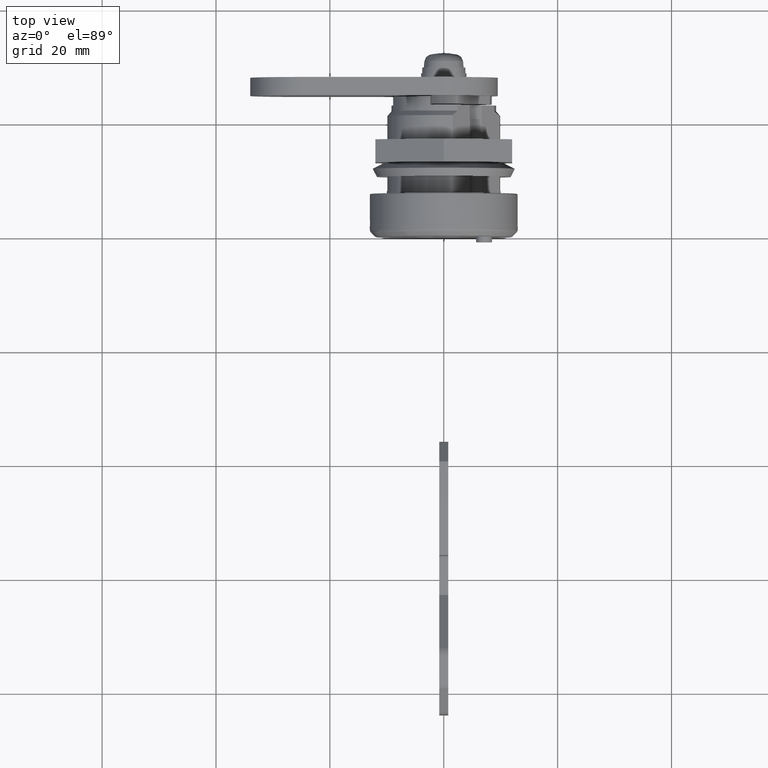
[diagram: clean part render]
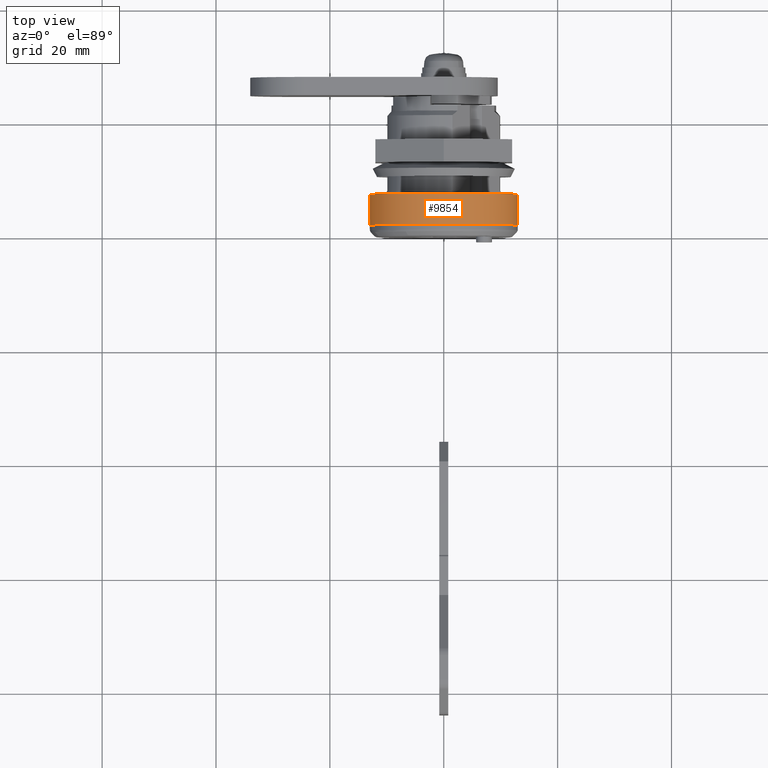
[diagram: same view with one face highlighted and labeled with its STEP entity id]
A machine part, top view. The second image highlights one B-rep face of the part: STEP entity #9854.
In plain terms, the highlighted face is a freeform B-spline surface patch.
Its self-contained STEP definition (entity closure, byte-faithful):
#9587=CARTESIAN_POINT('',(7.499999999999999,-12.975752379479079,-0.793631014037964));
#9588=VERTEX_POINT('',#9587);
#9609=CARTESIAN_POINT('',(7.500000000000000,12.915099514628460,-1.483308641936541));
#9610=VERTEX_POINT('',#9609);
#9624=CARTESIAN_POINT('',(7.500000000000000,0.0,13.0));
#9625=VERTEX_POINT('',#9624);
#9626=CARTESIAN_POINT('',(7.500000000000000,0.0,13.0));
#9627=CARTESIAN_POINT('',(7.500000000000000,13.0,13.0));
#9628=CARTESIAN_POINT('',(7.500000000000000,13.0,0.0));
#9629=CARTESIAN_POINT('',(7.499999999999999,12.999999999999996,-0.744084055643738));
#9630=CARTESIAN_POINT('',(7.500000000000001,12.915099514628460,-1.483308641936541));
#9638=(BOUNDED_CURVE()B_SPLINE_CURVE(2,(#9626,#9627,#9628,#9629,#9630),.UNSPECIFIED.,.F.,.U.)B_SPLINE_CURVE_WITH_KNOTS((3,2,3),(0.0,0.250000000000000,0.269767755884782),.UNSPECIFIED.)CURVE()GEOMETRIC_REPRESENTATION_ITEM()RATIONAL_B_SPLINE_CURVE((1.0,0.707106781186547,1.0,0.976840633400750,0.957343736444542))REPRESENTATION_ITEM(''));
#9639=EDGE_CURVE('',#9625,#9610,#9638,.T.);
#9641=CARTESIAN_POINT('',(7.499999999999847,-10.542656448617530,7.606076189891018));
#9642=VERTEX_POINT('',#9641);
#9643=CARTESIAN_POINT('',(7.499999999999847,-10.542656448617532,7.606076189891018));
#9644=CARTESIAN_POINT('',(7.500000000000001,-6.651170876443495,13.000000000000002));
#9645=CARTESIAN_POINT('',(7.500000000000000,0.0,13.0));
#9653=(BOUNDED_CURVE()B_SPLINE_CURVE(2,(#9643,#9644,#9645),.UNSPECIFIED.,.F.,.U.)B_SPLINE_CURVE_WITH_KNOTS((3,3),(0.850743050382085,1.0),.UNSPECIFIED.)CURVE()GEOMETRIC_REPRESENTATION_ITEM()RATIONAL_B_SPLINE_CURVE((0.859068214727306,0.825134606384526,1.0))REPRESENTATION_ITEM(''));
#9654=EDGE_CURVE('',#9642,#9625,#9653,.T.);
#9694=CARTESIAN_POINT('',(7.499999999999999,-12.975752379479081,-0.793631014037964));
#9695=CARTESIAN_POINT('',(7.500000000000001,-13.000000000000004,-0.397185923051779));
#9696=CARTESIAN_POINT('',(7.500000000000000,-13.0,0.0));
#9697=CARTESIAN_POINT('',(7.500000000000001,-13.000000000000005,4.199992922822284));
#9698=CARTESIAN_POINT('',(7.499999999999847,-10.542656448617532,7.606076189891018));
#9706=(BOUNDED_CURVE()B_SPLINE_CURVE(2,(#9694,#9695,#9696,#9697,#9698),.UNSPECIFIED.,.F.,.U.)B_SPLINE_CURVE_WITH_KNOTS((3,2,3),(0.739332962237456,0.750000000000000,0.850743050382084),.UNSPECIFIED.)CURVE()GEOMETRIC_REPRESENTATION_ITEM()RATIONAL_B_SPLINE_CURVE((0.976072041663532,0.987502787898096,1.0,0.881972174802022,0.859068214727306))REPRESENTATION_ITEM(''));
#9707=EDGE_CURVE('',#9588,#9642,#9706,.T.);
#9731=CARTESIAN_POINT('',(2.099999999999909,12.915099514594470,-1.483308642232541));
#9732=VERTEX_POINT('',#9731);
#9748=CARTESIAN_POINT('',(7.500000000000000,12.915099514628460,-1.483308641936541));
#9749=CARTESIAN_POINT('',(2.099999999999909,12.915099514594470,-1.483308642232541));
#9750=QUASI_UNIFORM_CURVE('',1,(#9748,#9749),.UNSPECIFIED.,.F.,.U.);
#9751=EDGE_CURVE('',#9610,#9732,#9750,.T.);
#9755=CARTESIAN_POINT('',(2.099999999999910,-12.975752379462151,-0.793631014314760));
#9756=VERTEX_POINT('',#9755);
#9757=CARTESIAN_POINT('',(7.499999999999999,-12.975752379479079,-0.793631014037964));
#9758=CARTESIAN_POINT('',(2.099999999999910,-12.975752379462151,-0.793631014314760));
#9759=QUASI_UNIFORM_CURVE('',1,(#9757,#9758),.UNSPECIFIED.,.F.,.U.);
#9760=EDGE_CURVE('',#9588,#9756,#9759,.T.);
#9778=CARTESIAN_POINT('',(7.635000000000003,-12.975752379484270,-0.793631013953141));
#9779=CARTESIAN_POINT('',(7.635000000000003,-13.769383393437407,12.182121365531126));
#9780=CARTESIAN_POINT('',(7.635000000000003,-0.793631013953141,12.975752379484270));
#9781=CARTESIAN_POINT('',(7.635000000000003,12.182121365531126,13.769383393437407));
#9782=CARTESIAN_POINT('',(7.635000000000003,12.975752379484270,0.793631013953141));
#9783=CARTESIAN_POINT('',(7.635000000000004,13.045547299132114,-0.347505835255107));
#9784=CARTESIAN_POINT('',(7.635000000000003,12.915099514664274,-1.483308641624685));
#9785=CARTESIAN_POINT('',(1.961624999999907,-12.975752379484270,-0.793631013953141));
#9786=CARTESIAN_POINT('',(1.961624999999906,-13.769383393437407,12.182121365531126));
#9787=CARTESIAN_POINT('',(1.961624999999907,-0.793631013953141,12.975752379484270));
#9788=CARTESIAN_POINT('',(1.961624999999906,12.182121365531126,13.769383393437407));
#9789=CARTESIAN_POINT('',(1.961624999999907,12.975752379484270,0.793631013953141));
#9790=CARTESIAN_POINT('',(1.961624999999907,13.045547299132114,-0.347505835255107));
#9791=CARTESIAN_POINT('',(1.961624999999907,12.915099514664274,-1.483308641624685));
#9799=(BOUNDED_SURFACE()B_SPLINE_SURFACE(2,1,((#9778,#9785),(#9779,#9786),(#9780,#9787),(#9781,#9788),(#9782,#9789),(#9783,#9790),(#9784,#9791)),.UNSPECIFIED.,.F.,.F.,.U.)B_SPLINE_SURFACE_WITH_KNOTS((3,2,2,3),(2,2),(0.0,21.539105243400940,43.078210486801879,45.662903116009993),(0.0,5.673375000000098),.UNSPECIFIED.)GEOMETRIC_REPRESENTATION_ITEM()RATIONAL_B_SPLINE_SURFACE(((1.0,1.0),(0.707106781186548,0.707106781186548),(1.0,1.0),(0.707106781186548,0.707106781186548),(1.0,1.0),(0.964852813742386,0.964852813742386),(0.938140952186599,0.938140952186599)))REPRESENTATION_ITEM('')SURFACE());
#9800=CARTESIAN_POINT('',(2.100000000026660,12.959925338541250,1.019968244668403));
#9801=VERTEX_POINT('',#9800);
#9802=CARTESIAN_POINT('',(2.100000000026660,12.959925338541247,1.019968244668403));
#9803=CARTESIAN_POINT('',(2.099999999999910,13.000000000000004,0.510771391304970));
#9804=CARTESIAN_POINT('',(2.099999999999910,13.0,0.0));
#9805=CARTESIAN_POINT('',(2.099999999999910,13.000000000000005,-0.744084055942659));
#9806=CARTESIAN_POINT('',(2.099999999999909,12.915099514594472,-1.483308642232541));
#9814=(BOUNDED_CURVE()B_SPLINE_CURVE(2,(#9802,#9803,#9804,#9805,#9806),.UNSPECIFIED.,.F.,.U.)B_SPLINE_CURVE_WITH_KNOTS((3,2,3),(0.236331300627362,0.250000000000000,0.269767755892540),.UNSPECIFIED.)CURVE()GEOMETRIC_REPRESENTATION_ITEM()RATIONAL_B_SPLINE_CURVE((0.969723356160535,0.983986122575018,1.0,0.976840633391662,0.957343736429240))REPRESENTATION_ITEM(''));
#9815=EDGE_CURVE('',#9801,#9732,#9814,.T.);
#9816=ORIENTED_EDGE('',*,*,#9815,.F.);
#9817=CARTESIAN_POINT('',(2.099999999999910,0.0,13.0));
#9818=VERTEX_POINT('',#9817);
#9819=CARTESIAN_POINT('',(2.099999999999910,0.0,13.0));
#9820=CARTESIAN_POINT('',(2.099999999999910,12.017076391176607,12.999999999999998));
#9821=CARTESIAN_POINT('',(2.100000000026661,12.959925338541249,1.019968244668403));
#9829=(BOUNDED_CURVE()B_SPLINE_CURVE(2,(#9819,#9820,#9821),.UNSPECIFIED.,.F.,.U.)B_SPLINE_CURVE_WITH_KNOTS((3,3),(0.0,0.236331300627362),.UNSPECIFIED.)CURVE()GEOMETRIC_REPRESENTATION_ITEM()RATIONAL_B_SPLINE_CURVE((1.0,0.723120658611529,0.969723356160535))REPRESENTATION_ITEM(''));
#9830=EDGE_CURVE('',#9818,#9801,#9829,.T.);
#9831=ORIENTED_EDGE('',*,*,#9830,.F.);
#9832=CARTESIAN_POINT('',(2.099999999999910,-12.975752379462151,-0.793631014314760));
#9833=CARTESIAN_POINT('',(2.099999999999910,-12.999999999999993,-0.397185923062973));
#9834=CARTESIAN_POINT('',(2.099999999999910,-13.0,0.0));
#9835=CARTESIAN_POINT('',(2.099999999999910,-13.0,13.0));
#9836=CARTESIAN_POINT('',(2.099999999999910,0.0,13.0));
#9844=(BOUNDED_CURVE()B_SPLINE_CURVE(2,(#9832,#9833,#9834,#9835,#9836),.UNSPECIFIED.,.F.,.U.)B_SPLINE_CURVE_WITH_KNOTS((3,2,3),(0.739332962237160,0.750000000000000,1.0),.UNSPECIFIED.)CURVE()GEOMETRIC_REPRESENTATION_ITEM()RATIONAL_B_SPLINE_CURVE((0.976072041662896,0.987502787897748,1.0,0.707106781186547,1.0))REPRESENTATION_ITEM(''));
#9845=EDGE_CURVE('',#9756,#9818,#9844,.T.);
#9846=ORIENTED_EDGE('',*,*,#9845,.F.);
#9847=ORIENTED_EDGE('',*,*,#9760,.F.);
#9848=ORIENTED_EDGE('',*,*,#9707,.T.);
#9849=ORIENTED_EDGE('',*,*,#9654,.T.);
#9850=ORIENTED_EDGE('',*,*,#9639,.T.);
#9851=ORIENTED_EDGE('',*,*,#9751,.T.);
#9852=EDGE_LOOP('',(#9816,#9831,#9846,#9847,#9848,#9849,#9850,#9851));
#9853=FACE_OUTER_BOUND('',#9852,.T.);
#9854=ADVANCED_FACE('',(#9853),#9799,.T.);